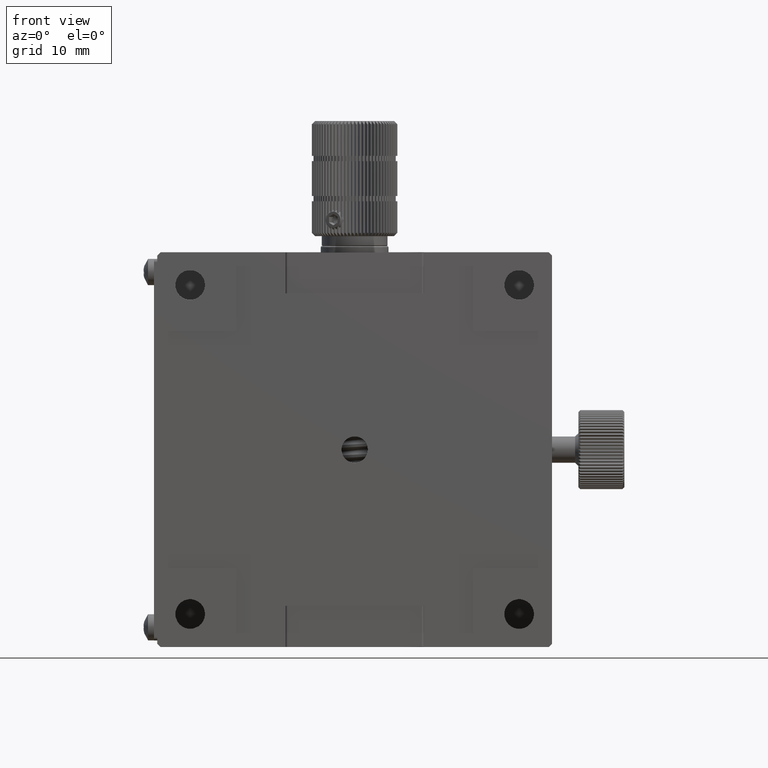
[diagram: clean part render]
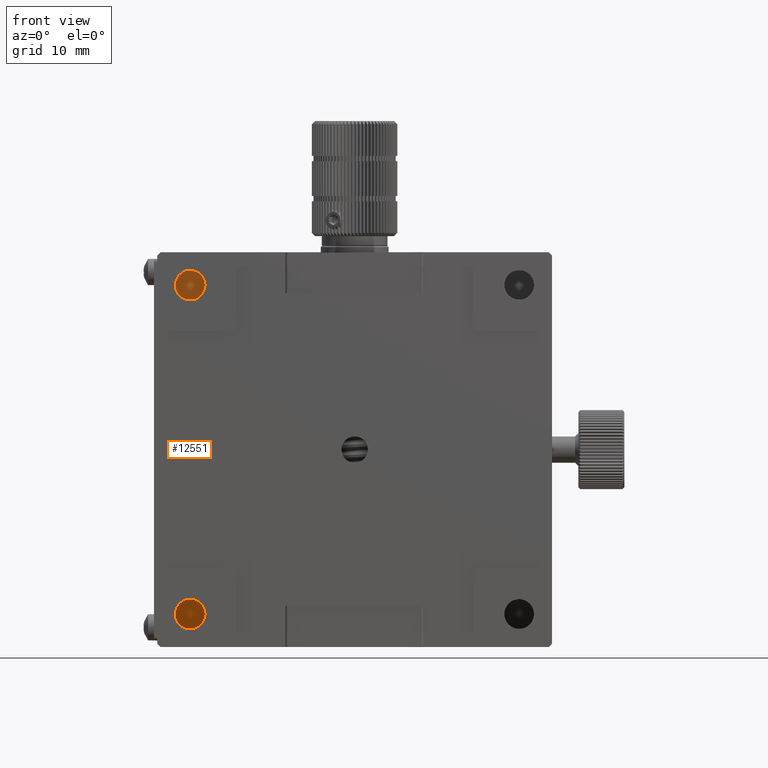
[diagram: same view with one face highlighted and labeled with its STEP entity id]
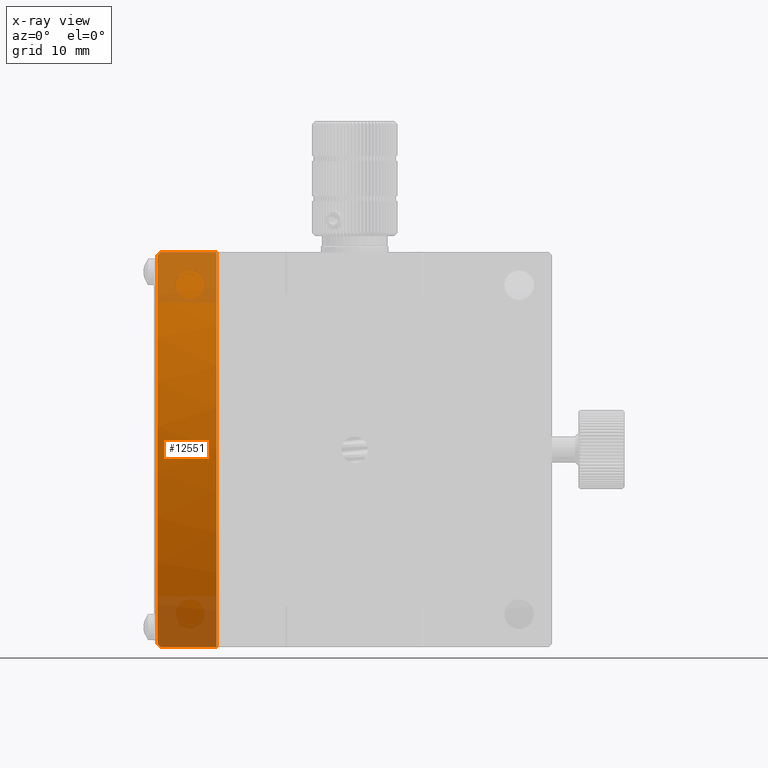
[diagram: x-ray of the same camera — body ghosted, the highlighted face saturated]
A machine part, front view. The second image highlights one B-rep face of the part: STEP entity #12551.
The next image is the same camera in x-ray: the body ghosted, the highlighted face saturated — about 20% of this face is hidden behind the body in this view.
In plain terms, the highlighted cylindrical surface (partial cylindrical patch) has radius 53 mm, axis along (1, -0, -0).
Its self-contained STEP definition (entity closure, byte-faithful):
#734 = ORIENTED_EDGE ( 'NONE', *, *, #57449, .F. ) ;
#2091 = CARTESIAN_POINT ( 'NONE',  ( 29.05815170115019086, 96.33657315266985677, 50.22904667704491999 ) ) ;
#2630 = CARTESIAN_POINT ( 'NONE',  ( 20.55815170115014823, 52.64446860276292028, 80.22904667704493420 ) ) ;
#2823 = AXIS2_PLACEMENT_3D ( 'NONE', #2091, #19558, #18398 ) ;
#3318 = DIRECTION ( 'NONE',  ( 1.000000000000000000, -3.491481338843134144E-15, -3.491481338843133355E-15 ) ) ;
#5299 = AXIS2_PLACEMENT_3D ( 'NONE', #33552, #3318, #45582 ) ;
#5547 = CARTESIAN_POINT ( 'NONE',  ( 20.55815170115014823, 52.64446860276292028, 80.22904667704493420 ) ) ;
#6608 = EDGE_CURVE ( 'NONE', #56003, #13102, #67331, .T. ) ;
#7848 = EDGE_CURVE ( 'NONE', #68294, #56003, #53108, .T. ) ;
#8538 = LINE ( 'NONE', #13968, #16540 ) ;
#10625 = CARTESIAN_POINT ( 'NONE',  ( 20.55815170114994928, 52.64446860276292028, 20.22904667704493420 ) ) ;
#12551 = ADVANCED_FACE ( 'NONE', ( #45203 ), #40129, .T. ) ;
#12771 = ORIENTED_EDGE ( 'NONE', *, *, #7848, .F. ) ;
#13102 = VERTEX_POINT ( 'NONE', #22493 ) ;
#13968 = CARTESIAN_POINT ( 'NONE',  ( 20.05815170114988177, 52.64446860276290607, 20.22904667704493775 ) ) ;
#16540 = VECTOR ( 'NONE', #62444, 1000.000000000000000 ) ;
#16921 = DIRECTION ( 'NONE',  ( 3.469446951953612611E-15, 1.000000000000000000, 0.000000000000000000 ) ) ;
#18398 = DIRECTION ( 'NONE',  ( 3.469446951953614583E-15, 1.000000000000000000, 1.832915370843419174E-15 ) ) ;
#19558 = DIRECTION ( 'NONE',  ( -1.000000000000000000, 3.491481338843134144E-15, 3.491481338843133355E-15 ) ) ;
#20226 = CIRCLE ( 'NONE', #2823, 52.99999999999999289 ) ;
#21242 = CARTESIAN_POINT ( 'NONE',  ( 20.22546178749550805, 52.41742846586359406, 79.89635676339030113 ) ) ;
#22493 = CARTESIAN_POINT ( 'NONE',  ( 29.05815170115014112, 52.64446860276289897, 80.22904667704490578 ) ) ;
#22717 = DIRECTION ( 'NONE',  ( 1.000000000000000000, -3.491481338843134144E-15, -3.491481338843133355E-15 ) ) ;
#22928 = VECTOR ( 'NONE', #30484, 1000.000000000000000 ) ;
#27276 = CARTESIAN_POINT ( 'NONE',  ( 29.05815170114993506, 52.64446860276290607, 20.22904667704490578 ) ) ;
#28155 = CARTESIAN_POINT ( 'NONE',  ( 20.05815170115019797, 96.33657315266988519, 50.22904667704494841 ) ) ;
#30484 = DIRECTION ( 'NONE',  ( 1.000000000000000000, 0.000000000000000000, -3.491481338843133355E-15 ) ) ;
#31947 = VERTEX_POINT ( 'NONE', #75497 ) ;
#33552 = CARTESIAN_POINT ( 'NONE',  ( 80.05815170115019441, 96.33657315266967203, 50.22904667704474235 ) ) ;
#40129 = CYLINDRICAL_SURFACE ( 'NONE', #5299, 53.00000000000000711 ) ;
#42351 = ORIENTED_EDGE ( 'NONE', *, *, #59454, .T. ) ;
#44571 = EDGE_CURVE ( 'NONE', #65348, #31947, #45318, .T. ) ;
#45203 = FACE_OUTER_BOUND ( 'NONE', #65850, .T. ) ;
#45225 = ORIENTED_EDGE ( 'NONE', *, *, #44571, .F. ) ;
#45318 =( BOUNDED_CURVE ( )  B_SPLINE_CURVE ( 3, ( #10625, #57170, #57947, #52134 ),
 .UNSPECIFIED., .F., .T. ) 
 B_SPLINE_CURVE_WITH_KNOTS ( ( 4, 4 ),
 ( 0.9691048077543629180, 0.9805041586199667591 ),
 .UNSPECIFIED. ) 
 CURVE ( )  GEOMETRIC_REPRESENTATION_ITEM ( )  RATIONAL_B_SPLINE_CURVE ( ( 1.000000000000000000, 0.9999891712626356455, 0.9999891712626356455, 1.000000000000000000 ) ) 
 REPRESENTATION_ITEM ( '' )  );
#45582 = DIRECTION ( 'NONE',  ( 3.403985688709205741E-15, 1.000000000000000000, 0.000000000000000000 ) ) ;
#51564 = CARTESIAN_POINT ( 'NONE',  ( 20.55815170114994928, 52.64446860276292028, 20.22904667704493420 ) ) ;
#52134 = CARTESIAN_POINT ( 'NONE',  ( 20.05815170114993862, 52.30533424209640003, 20.72904667704496262 ) ) ;
#53108 =( BOUNDED_CURVE ( )  B_SPLINE_CURVE ( 3, ( #74370, #21242, #56922, #2630 ),
 .UNSPECIFIED., .F., .T. ) 
 B_SPLINE_CURVE_WITH_KNOTS ( ( 4, 4 ),
 ( 5.302681148559619473, 5.314080499425223536 ),
 .UNSPECIFIED. ) 
 CURVE ( )  GEOMETRIC_REPRESENTATION_ITEM ( )  RATIONAL_B_SPLINE_CURVE ( ( 1.000000000000000000, 0.9999891712626356455, 0.9999891712626356455, 1.000000000000000000 ) ) 
 REPRESENTATION_ITEM ( '' )  );
#56003 = VERTEX_POINT ( 'NONE', #5547 ) ;
#56922 = CARTESIAN_POINT ( 'NONE',  ( 20.39213025897127807, 52.53047447689799299, 80.06302523486607470 ) ) ;
#57170 = CARTESIAN_POINT ( 'NONE',  ( 20.39213025897108622, 52.53047447689799299, 20.39506811922381502 ) ) ;
#57449 = EDGE_CURVE ( 'NONE', #61884, #65348, #8538, .T. ) ;
#57947 = CARTESIAN_POINT ( 'NONE',  ( 20.22546178749531620, 52.41742846586359406, 20.56173659069959214 ) ) ;
#59454 = EDGE_CURVE ( 'NONE', #68294, #31947, #65047, .T. ) ;
#61884 = VERTEX_POINT ( 'NONE', #27276 ) ;
#62444 = DIRECTION ( 'NONE',  ( -1.000000000000000000, 0.000000000000000000, 3.491481338843133355E-15 ) ) ;
#64809 = ORIENTED_EDGE ( 'NONE', *, *, #6608, .F. ) ;
#65047 = CIRCLE ( 'NONE', #66250, 53.00000000000002132 ) ;
#65348 = VERTEX_POINT ( 'NONE', #51564 ) ;
#65850 = EDGE_LOOP ( 'NONE', ( #64809, #12771, #42351, #45225, #734, #66174 ) ) ;
#66174 = ORIENTED_EDGE ( 'NONE', *, *, #73329, .T. ) ;
#66250 = AXIS2_PLACEMENT_3D ( 'NONE', #28155, #22717, #16921 ) ;
#67331 = LINE ( 'NONE', #71991, #22928 ) ;
#68294 = VERTEX_POINT ( 'NONE', #69940 ) ;
#69940 = CARTESIAN_POINT ( 'NONE',  ( 20.05815170115014823, 52.30533424209640714, 79.72904667704494841 ) ) ;
#71991 = CARTESIAN_POINT ( 'NONE',  ( 20.05815170115008783, 52.64446860276292028, 80.22904667704493420 ) ) ;
#73329 = EDGE_CURVE ( 'NONE', #61884, #13102, #20226, .T. ) ;
#74370 = CARTESIAN_POINT ( 'NONE',  ( 20.05815170115014823, 52.30533424209640714, 79.72904667704494841 ) ) ;
#75497 = CARTESIAN_POINT ( 'NONE',  ( 20.05815170114993862, 52.30533424209640003, 20.72904667704496262 ) ) ;